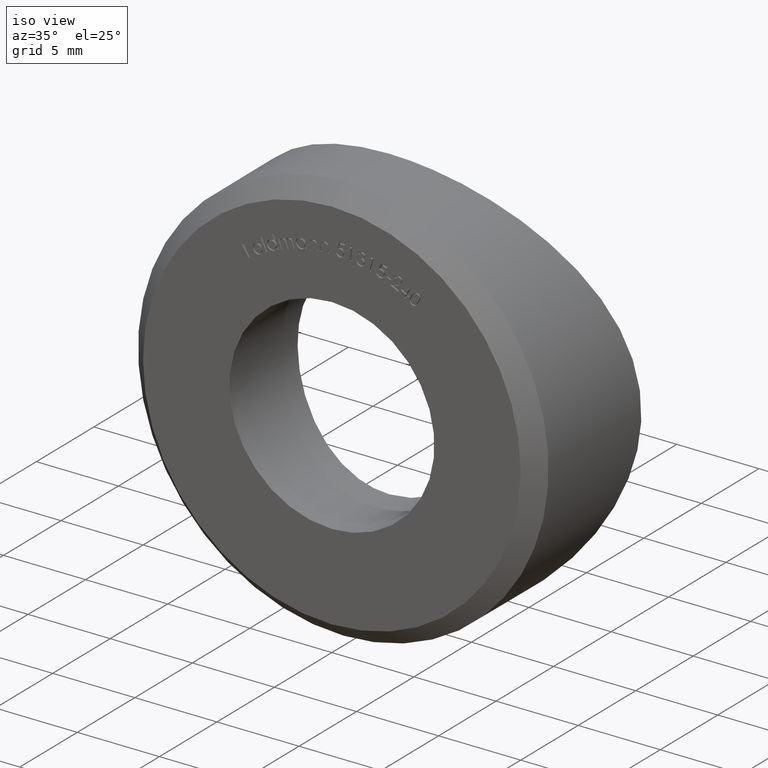
[diagram: clean part render]
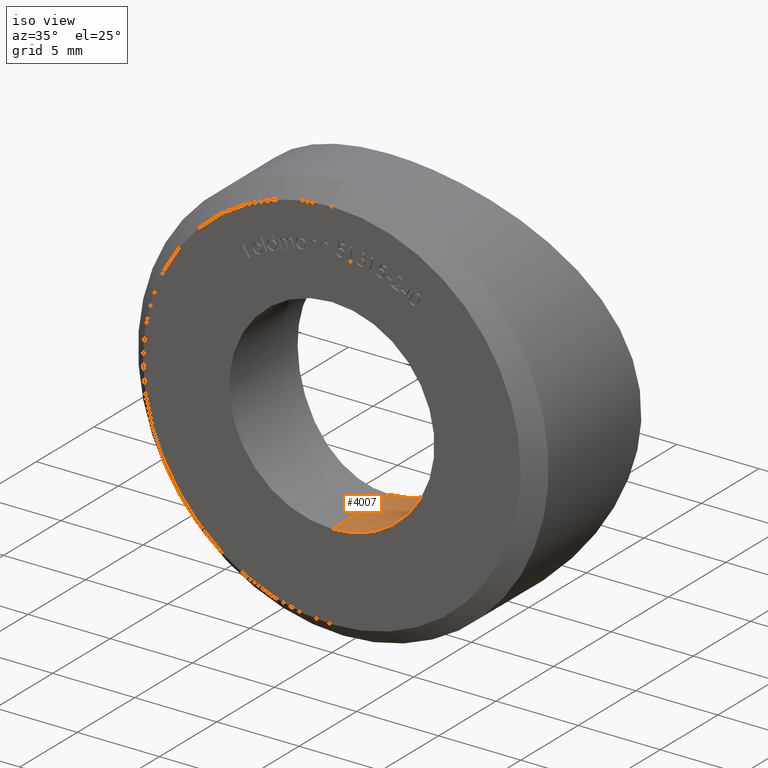
[diagram: same view with one face highlighted and labeled with its STEP entity id]
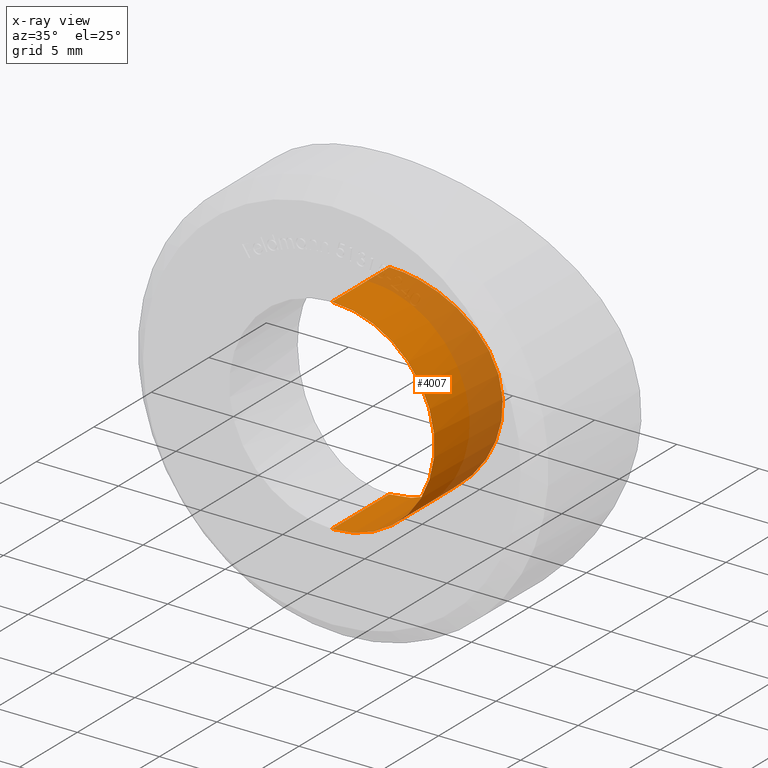
[diagram: x-ray of the same camera — body ghosted, the highlighted face saturated]
A machine part, iso view. The second image highlights one B-rep face of the part: STEP entity #4007.
The next image is the same camera in x-ray: the body ghosted, the highlighted face saturated — about 41% of this face is hidden behind the body in this view.
In plain terms, the highlighted cylindrical surface (partial cylindrical patch) has radius 6.25 mm, axis along (-0, -1, -0).
Its self-contained STEP definition (entity closure, byte-faithful):
#36 = CARTESIAN_POINT ( 'NONE',  ( 4.129377516820867733, 5.403958718530295080, 4.709273196560634922 ) ) ;
#79 = CARTESIAN_POINT ( 'NONE',  ( 1.025924344798125887, 5.023873707204653982, 6.168656382058798293 ) ) ;
#138 = CARTESIAN_POINT ( 'NONE',  ( 0.000000000000000000, 0.000000000000000000, -6.250000000000000000 ) ) ;
#156 = CARTESIAN_POINT ( 'NONE',  ( 5.929346790008384716, 5.845399766435846800, 2.018541811327339897 ) ) ;
#356 = ORIENTED_EDGE ( 'NONE', *, *, #10644, .F. ) ;
#921 = CARTESIAN_POINT ( 'NONE',  ( 3.137947871242020792, 5.230706210590756911, -5.420522640311887130 ) ) ;
#958 = CARTESIAN_POINT ( 'NONE',  ( 5.604001178644893777, 5.753847512087982174, 2.774764410090286848 ) ) ;
#1037 = CARTESIAN_POINT ( 'NONE',  ( 4.277827131874121669, 5.435567891258785700, -4.561112980212925549 ) ) ;
#1075 = CARTESIAN_POINT ( 'NONE',  ( 6.088604519415618199, 5.893088101322447869, -1.426119836423855203 ) ) ;
#1171 = VERTEX_POINT ( 'NONE', #138 ) ;
#1213 = VECTOR ( 'NONE', #1835, 1000.000000000000000 ) ;
#1453 = AXIS2_PLACEMENT_3D ( 'NONE', #6268, #8124, #10823 ) ;
#1641 = LINE ( 'NONE', #6492, #1213 ) ;
#1772 = CYLINDRICAL_SURFACE ( 'NONE', #1453, 6.250000000000000000 ) ;
#1835 = DIRECTION ( 'NONE',  ( -0.000000000000000000, -1.000000000000000000, -0.000000000000000000 ) ) ;
#1846 = CARTESIAN_POINT ( 'NONE',  ( 1.425037745395242972, 5.046995284324871989, -6.088807673837261625 ) ) ;
#1885 = CARTESIAN_POINT ( 'NONE',  ( 2.021123081860049187, 5.093155915505384712, 5.928240180295401451 ) ) ;
#2017 = CARTESIAN_POINT ( 'NONE',  ( 4.127395437426122804, 5.405038165713829557, -4.697753110588051229 ) ) ;
#2029 = CARTESIAN_POINT ( 'NONE',  ( 0.000000000000000000, 0.000000000000000000, 0.000000000000000000 ) ) ;
#2075 = DIRECTION ( 'NONE',  ( 0.000000000000000000, 1.000000000000000000, 0.000000000000000000 ) ) ;
#2794 = EDGE_LOOP ( 'NONE', ( #356, #11688, #10190, #8074 ) ) ;
#2811 = CARTESIAN_POINT ( 'NONE',  ( 4.965340698435830369, 5.588331078080633674, -3.817917816163415523 ) ) ;
#2850 = CARTESIAN_POINT ( 'NONE',  ( 7.653600344080003886E-16, 5.000000000000002665, 6.250000000000000000 ) ) ;
#2896 = CARTESIAN_POINT ( 'NONE',  ( 2.017691307718045390, 5.095308568474989031, -5.918936514102241198 ) ) ;
#2933 = CARTESIAN_POINT ( 'NONE',  ( 3.646235791098441315, 5.315209738352407953, -5.080259362464111028 ) ) ;
#2976 = CARTESIAN_POINT ( 'NONE',  ( 4.562327866243736985, 5.496209589663291872, 4.276598253280685213 ) ) ;
#3053 = CIRCLE ( 'NONE', #6488, 6.250000000000000000 ) ;
#3269 = EDGE_CURVE ( 'NONE', #8936, #1171, #1641, .T. ) ;
#3633 = CARTESIAN_POINT ( 'NONE',  ( 0.000000000000000000, 5.000000000000000888, -6.250000000000000000 ) ) ;
#3810 = CARTESIAN_POINT ( 'NONE',  ( 2.779792706760061627, 5.179593753800866729, -5.612742246469808904 ) ) ;
#3855 = CARTESIAN_POINT ( 'NONE',  ( 0.4095757712310015841, 5.002963803421408784, 6.239969463938240146 ) ) ;
#3895 = CARTESIAN_POINT ( 'NONE',  ( 4.707499128267449429, 5.527186088191880842, -4.131123129516003800 ) ) ;
#4007 = ADVANCED_FACE ( 'NONE', ( #5618 ), #1772, .F. ) ;
#4250 = VERTEX_POINT ( 'NONE', #9580 ) ;
#4691 = B_SPLINE_CURVE_WITH_KNOTS ( 'NONE', 3,
 ( #8508, #8465, #11430, #1846, #6630, #2896, #6669, #3810, #921, #2933, #8542, #2017, #1037, #3895, #2811, #10440, #9537, #9494, #7513, #10515, #1075, #9413, #4874, #10356, #4794, #6541, #156, #4714, #958, #11472, #4838, #11315, #5646, #7557, #2976, #36, #7682, #6707, #8624, #1885, #5809, #79, #7646, #3855, #11391, #2850 ),
 .UNSPECIFIED., .F., .F.,
 ( 4, 2, 2, 2, 2, 2, 2, 2, 2, 2, 2, 2, 2, 2, 2, 2, 2, 2, 2, 2, 2, 2, 4 ),
 ( 0.000000000000000000, 0.001228132618127822850, 0.001842198927191734384, 0.002456265236255646568, 0.003684397854383470068, 0.004298464163447382469, 0.004912530472511296604, 0.006140663090639124008, 0.007368795708766950545, 0.007982862017830863813, 0.008596928326894777081, 0.009825060945022605352, 0.01105319356315043362, 0.01228132618127826016, 0.01289539249034217516, 0.01350945879940609017, 0.01412352510847000690, 0.01473759141753392017, 0.01596572403566174844, 0.01719385665378957845, 0.01842198927191740845, 0.01903605558098132172, 0.01965012189004523846 ),
 .UNSPECIFIED. ) ;
#4714 = CARTESIAN_POINT ( 'NONE',  ( 5.692603151481298696, 5.778418392155730388, 2.588254326724872989 ) ) ;
#4794 = CARTESIAN_POINT ( 'NONE',  ( 6.208949308434560166, 5.929430265171563796, 0.8242155544780088716 ) ) ;
#4838 = CARTESIAN_POINT ( 'NONE',  ( 5.306312453125260120, 5.674488850197318968, 3.308583858081369122 ) ) ;
#4842 = CARTESIAN_POINT ( 'NONE',  ( 7.654042494670957606E-16, 10.00000000000000000, 6.250000000000000000 ) ) ;
#4874 = CARTESIAN_POINT ( 'NONE',  ( 6.249813061122179825, 5.942166040293558993, -0.4130757000879478613 ) ) ;
#5618 = FACE_OUTER_BOUND ( 'NONE', #2794, .T. ) ;
#5646 = CARTESIAN_POINT ( 'NONE',  ( 4.959460014562146135, 5.587833549542737366, 3.808911049401739746 ) ) ;
#5802 = VECTOR ( 'NONE', #6711, 1000.000000000000000 ) ;
#5809 = CARTESIAN_POINT ( 'NONE',  ( 1.631215159826689076, 5.058984905614790861, 6.047396661953674979 ) ) ;
#6268 = CARTESIAN_POINT ( 'NONE',  ( 0.000000000000000000, 10.00000000000000000, 0.000000000000000000 ) ) ;
#6488 = AXIS2_PLACEMENT_3D ( 'NONE', #2029, #2075, #11443 ) ;
#6492 = CARTESIAN_POINT ( 'NONE',  ( 0.000000000000000000, 10.00000000000000000, -6.250000000000000000 ) ) ;
#6501 = VERTEX_POINT ( 'NONE', #8023 ) ;
#6541 = CARTESIAN_POINT ( 'NONE',  ( 6.048203328111573462, 5.880888666305489565, 1.627765123343531961 ) ) ;
#6630 = CARTESIAN_POINT ( 'NONE',  ( 1.623785799057939183, 5.061352968746934522, -6.038891235151656822 ) ) ;
#6669 = CARTESIAN_POINT ( 'NONE',  ( 2.212823183303245678, 5.114943796105578144, -5.848745105909604725 ) ) ;
#6707 = CARTESIAN_POINT ( 'NONE',  ( 3.140809521346322075, 5.231153506007427900, 5.418768491723912284 ) ) ;
#6711 = DIRECTION ( 'NONE',  ( -0.000000000000000000, -1.000000000000000000, -0.000000000000000000 ) ) ;
#7513 = CARTESIAN_POINT ( 'NONE',  ( 5.918027562835903588, 5.842670984389044087, -2.020282588223523135 ) ) ;
#7557 = CARTESIAN_POINT ( 'NONE',  ( 4.700745830998109831, 5.527297272737883738, 4.123958735323296487 ) ) ;
#7646 = CARTESIAN_POINT ( 'NONE',  ( 0.8197486358439414200, 5.014861152084121976, 6.199434119118709674 ) ) ;
#7682 = CARTESIAN_POINT ( 'NONE',  ( 3.816241793582314745, 5.343502060247029561, 4.966289861576264286 ) ) ;
#8023 = CARTESIAN_POINT ( 'NONE',  ( 7.653600344080003886E-16, 5.000000000000002665, 6.250000000000000000 ) ) ;
#8074 = ORIENTED_EDGE ( 'NONE', *, *, #10231, .F. ) ;
#8124 = DIRECTION ( 'NONE',  ( -0.000000000000000000, -1.000000000000000000, -0.000000000000000000 ) ) ;
#8465 = CARTESIAN_POINT ( 'NONE',  ( 0.4154402426383581592, 5.000000000000002665, -6.250000000000000888 ) ) ;
#8508 = CARTESIAN_POINT ( 'NONE',  ( 0.000000000000000000, 5.000000000000000888, -6.250000000000000000 ) ) ;
#8542 = CARTESIAN_POINT ( 'NONE',  ( 3.811641256886042939, 5.344851433875888347, -4.957385229506563462 ) ) ;
#8624 = CARTESIAN_POINT ( 'NONE',  ( 2.774690400615388075, 5.178941537117458971, 5.615163695568377022 ) ) ;
#8936 = VERTEX_POINT ( 'NONE', #3633 ) ;
#9334 = EDGE_CURVE ( 'NONE', #8936, #6501, #4691, .T. ) ;
#9413 = CARTESIAN_POINT ( 'NONE',  ( 6.209628752300946353, 5.929637048720656445, -0.8201840557807440479 ) ) ;
#9494 = CARTESIAN_POINT ( 'NONE',  ( 5.848929209183468814, 5.822644595437211912, -2.212212337359552361 ) ) ;
#9537 = CARTESIAN_POINT ( 'NONE',  ( 5.614657142301205717, 5.756370921824530917, -2.775527058565189442 ) ) ;
#9580 = CARTESIAN_POINT ( 'NONE',  ( 7.654042494670957606E-16, 0.000000000000000000, 6.250000000000000000 ) ) ;
#10190 = ORIENTED_EDGE ( 'NONE', *, *, #3269, .T. ) ;
#10231 = EDGE_CURVE ( 'NONE', #4250, #1171, #3053, .T. ) ;
#10356 = CARTESIAN_POINT ( 'NONE',  ( 6.250185650007988869, 5.942280992706923115, 0.4073992800812971105 ) ) ;
#10440 = CARTESIAN_POINT ( 'NONE',  ( 5.422167520319002065, 5.703766117162950344, -3.135475097033772141 ) ) ;
#10515 = CARTESIAN_POINT ( 'NONE',  ( 6.037780624150248521, 5.877866745369543899, -1.627819739836215973 ) ) ;
#10644 = EDGE_CURVE ( 'NONE', #6501, #4250, #10825, .T. ) ;
#10823 = DIRECTION ( 'NONE',  ( 0.000000000000000000, 0.000000000000000000, -1.000000000000000000 ) ) ;
#10825 = LINE ( 'NONE', #4842, #5802 ) ;
#11315 = CARTESIAN_POINT ( 'NONE',  ( 5.080515492331194594, 5.617436453564655707, 3.645825191685896804 ) ) ;
#11391 = CARTESIAN_POINT ( 'NONE',  ( 0.2046896490181188966, 4.999999999999998224, 6.249999999999998224 ) ) ;
#11430 = CARTESIAN_POINT ( 'NONE',  ( 0.8234910764539923322, 5.012191553733033267, -6.208994146085438537 ) ) ;
#11443 = DIRECTION ( 'NONE',  ( 0.000000000000000000, 0.000000000000000000, 1.000000000000000000 ) ) ;
#11472 = CARTESIAN_POINT ( 'NONE',  ( 5.411053893911632606, 5.701939688683030916, 3.134428576142837208 ) ) ;
#11688 = ORIENTED_EDGE ( 'NONE', *, *, #9334, .F. ) ;